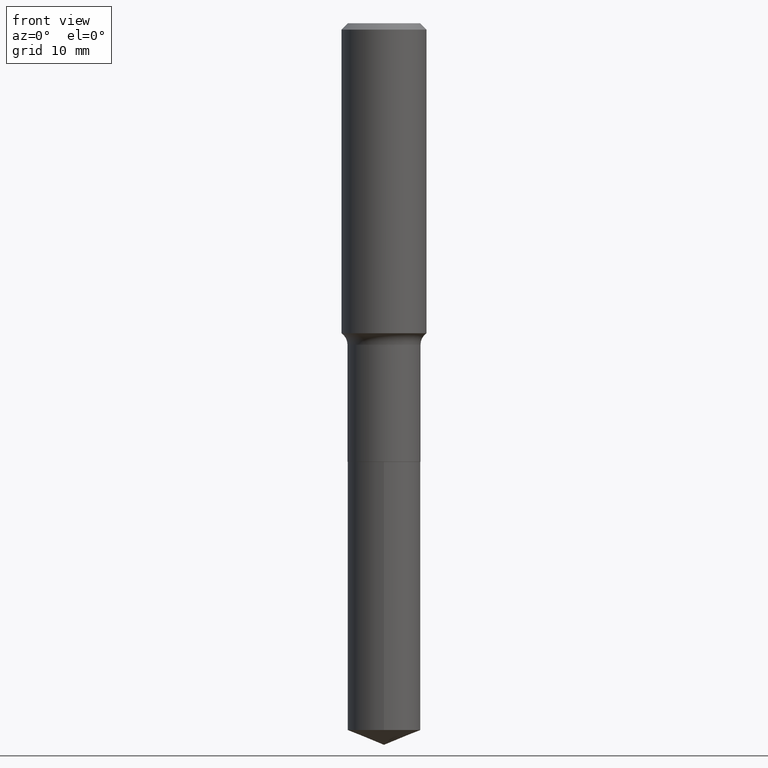
[diagram: clean part render]
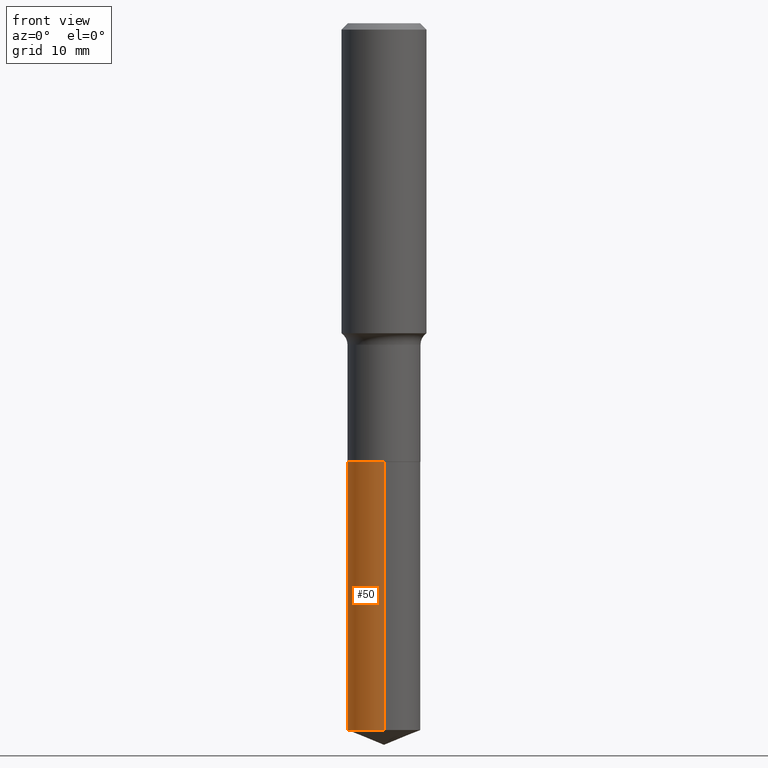
[diagram: same view with one face highlighted and labeled with its STEP entity id]
A machine part, front view. The second image highlights one B-rep face of the part: STEP entity #50.
In plain terms, the highlighted cylindrical surface (edge-blend (fillet) strip) has radius 5.1587 mm, axis along (-0, 0, 1).
Its self-contained STEP definition (entity closure, byte-faithful):
#3 = CARTESIAN_POINT ( 'NONE',  ( 1.443112296328823056E-15, 0.2030999999999914818, -2.440900000000000514 ) ) ;
#18 = VERTEX_POINT ( 'NONE', #163 ) ;
#19 = CARTESIAN_POINT ( 'NONE',  ( -1.418239719838021019E-15, -0.2031000000000085515, -2.440899999999999181 ) ) ;
#28 = DIRECTION ( 'NONE',  ( -2.445557876646980104E-29, 3.491353784872209594E-15, 1.000000000000000000 ) ) ;
#41 = EDGE_CURVE ( 'NONE', #374, #371, #85, .T. ) ;
#50 = ADVANCED_FACE ( 'NONE', ( #448 ), #118, .T. ) ;
#55 = DIRECTION ( 'NONE',  ( -6.982962677686266711E-15, -1.000000000000000000, 2.690150658458161520E-15 ) ) ;
#70 = EDGE_LOOP ( 'NONE', ( #473, #280, #460, #142 ) ) ;
#85 = LINE ( 'NONE', #3, #309 ) ;
#95 = EDGE_CURVE ( 'NONE', #374, #18, #285, .T. ) ;
#117 = EDGE_CURVE ( 'NONE', #18, #275, #155, .T. ) ;
#118 = CYLINDRICAL_SURFACE ( 'NONE', #217, 0.2031000000000000028 ) ;
#125 = CIRCLE ( 'NONE', #234, 0.2031000000000000028 ) ;
#142 = ORIENTED_EDGE ( 'NONE', *, *, #375, .F. ) ;
#155 = LINE ( 'NONE', #19, #278 ) ;
#163 = CARTESIAN_POINT ( 'NONE',  ( -1.418239719837984140E-15, -0.2031000000000136307, -3.933642273532879319 ) ) ;
#175 = CARTESIAN_POINT ( 'NONE',  ( 5.969144809017299038E-29, -8.522356799982232966E-15, -2.440900000000000070 ) ) ;
#177 = DIRECTION ( 'NONE',  ( -2.445557876646980384E-29, 3.491353784872209594E-15, 1.000000000000000000 ) ) ;
#180 = AXIS2_PLACEMENT_3D ( 'NONE', #332, #177, #55 ) ;
#187 = DIRECTION ( 'NONE',  ( -6.982962677686266711E-15, -1.000000000000000000, 4.035225987687242674E-15 ) ) ;
#216 = CARTESIAN_POINT ( 'NONE',  ( -1.418239719838021019E-15, -0.2031000000000085515, -2.440899999999999181 ) ) ;
#217 = AXIS2_PLACEMENT_3D ( 'NONE', #175, #436, #187 ) ;
#222 = CARTESIAN_POINT ( 'NONE',  ( 5.969144809017299038E-29, -8.522356799982232966E-15, -2.440900000000000070 ) ) ;
#234 = AXIS2_PLACEMENT_3D ( 'NONE', #222, #325, #406 ) ;
#249 = CARTESIAN_POINT ( 'NONE',  ( 1.443112296328859935E-15, 0.2030999999999915095, -2.440900000000000514 ) ) ;
#275 = VERTEX_POINT ( 'NONE', #216 ) ;
#278 = VECTOR ( 'NONE', #28, 39.37007874015748143 ) ;
#280 = ORIENTED_EDGE ( 'NONE', *, *, #95, .T. ) ;
#285 = CIRCLE ( 'NONE', #180, 0.2031000000000000028 ) ;
#293 = CARTESIAN_POINT ( 'NONE',  ( 1.443112296328858752E-15, 0.2030999999999862082, -3.933642273532880651 ) ) ;
#296 = DIRECTION ( 'NONE',  ( -2.445557876646980104E-29, 3.491353784872209594E-15, 1.000000000000000000 ) ) ;
#309 = VECTOR ( 'NONE', #296, 39.37007874015748143 ) ;
#325 = DIRECTION ( 'NONE',  ( -2.445557876646980384E-29, 3.491353784872209594E-15, 1.000000000000000000 ) ) ;
#332 = CARTESIAN_POINT ( 'NONE',  ( 9.619732433859556057E-29, -1.373404818652000039E-14, -3.933642273532879763 ) ) ;
#371 = VERTEX_POINT ( 'NONE', #249 ) ;
#374 = VERTEX_POINT ( 'NONE', #293 ) ;
#375 = EDGE_CURVE ( 'NONE', #371, #275, #125, .T. ) ;
#406 = DIRECTION ( 'NONE',  ( -6.982962677686266711E-15, -1.000000000000000000, 4.035225987687242674E-15 ) ) ;
#436 = DIRECTION ( 'NONE',  ( -2.445557876646980384E-29, 3.491353784872209594E-15, 1.000000000000000000 ) ) ;
#448 = FACE_OUTER_BOUND ( 'NONE', #70, .T. ) ;
#460 = ORIENTED_EDGE ( 'NONE', *, *, #117, .T. ) ;
#473 = ORIENTED_EDGE ( 'NONE', *, *, #41, .F. ) ;